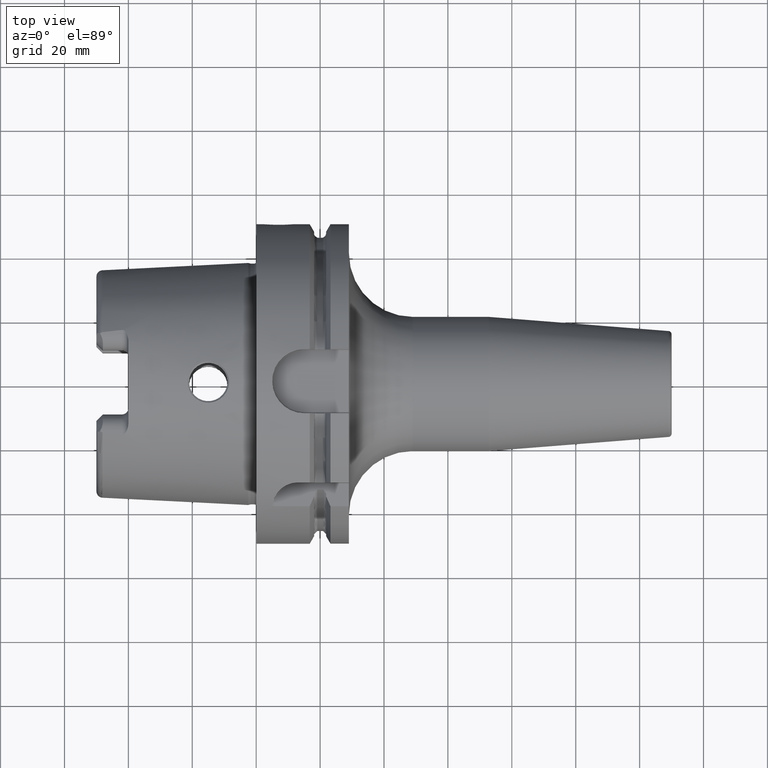
[diagram: clean part render]
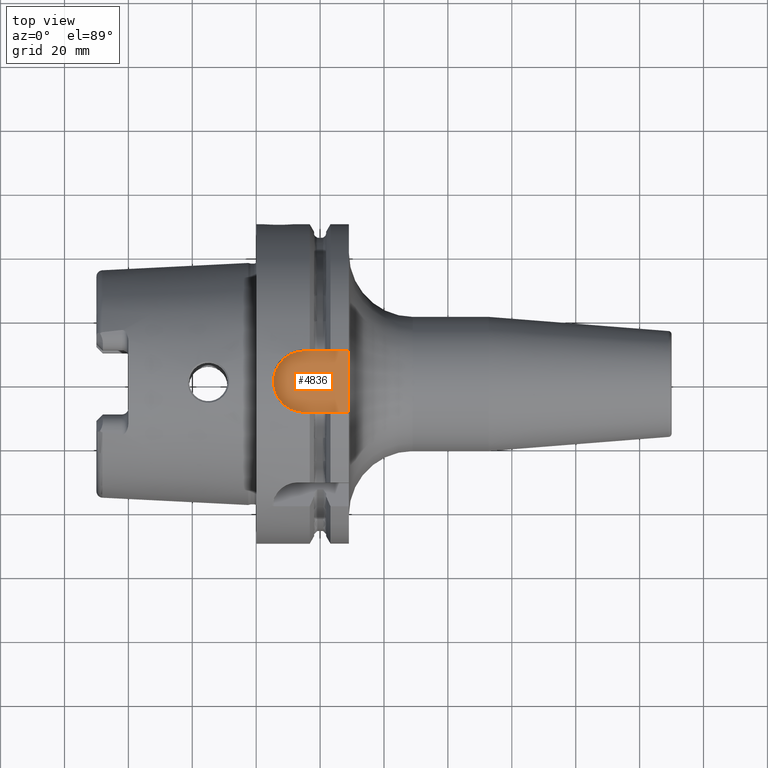
[diagram: same view with one face highlighted and labeled with its STEP entity id]
A machine part, top view. The second image highlights one B-rep face of the part: STEP entity #4836.
In plain terms, the highlighted planar face has unit normal (0, 0, 1).
Its self-contained STEP definition (entity closure, byte-faithful):
#1071=DIRECTION('',(0.E0,1.E0,0.E0));
#1072=VECTOR('',#1071,1.92E1);
#1073=CARTESIAN_POINT('',(2.9E1,-9.6E0,4.4E1));
#1074=LINE('',#1073,#1072);
#1735=DIRECTION('',(1.E0,1.002425647401E-8,-1.002288588783E-8));
#1736=VECTOR('',#1735,1.399999999791E1);
#1737=CARTESIAN_POINT('',(1.500000000209E1,9.599999859660E0,4.400000014032E1));
#1738=LINE('',#1737,#1736);
#1739=DIRECTION('',(-1.E0,1.002479026950E-8,1.002234942832E-8));
#1740=VECTOR('',#1739,1.399999999755E1);
#1741=CARTESIAN_POINT('',(2.9E1,-9.6E0,4.4E1));
#1742=LINE('',#1741,#1740);
#1743=CARTESIAN_POINT('',(1.5E1,-5.506706202141E-14,4.400000003787E1));
#1744=DIRECTION('',(0.E0,0.E0,-1.E0));
#1745=DIRECTION('',(0.E0,-1.E0,0.E0));
#1746=AXIS2_PLACEMENT_3D('',#1743,#1744,#1745);
#2946=CARTESIAN_POINT('',(2.9E1,-9.6E0,4.4E1));
#2948=VERTEX_POINT('',#2946);
#2951=CARTESIAN_POINT('',(2.9E1,9.6E0,4.4E1));
#2953=VERTEX_POINT('',#2951);
#3030=CARTESIAN_POINT('',(1.500000000209E1,9.599999859660E0,4.400000014032E1));
#3031=VERTEX_POINT('',#3030);
#3032=CARTESIAN_POINT('',(1.5E1,-9.599999195885E0,4.400000003787E1));
#3033=VERTEX_POINT('',#3032);
#4823=CARTESIAN_POINT('',(0.E0,0.E0,4.4E1));
#4824=DIRECTION('',(0.E0,0.E0,1.E0));
#4825=DIRECTION('',(1.E0,0.E0,0.E0));
#4826=AXIS2_PLACEMENT_3D('',#4823,#4824,#4825);
#4827=PLANE('',#4826);
#4829=ORIENTED_EDGE('',*,*,#4828,.T.);
#4830=ORIENTED_EDGE('',*,*,#4228,.F.);
#4832=ORIENTED_EDGE('',*,*,#4831,.T.);
#4833=ORIENTED_EDGE('',*,*,#4813,.T.);
#4834=EDGE_LOOP('',(#4829,#4830,#4832,#4833));
#4835=FACE_OUTER_BOUND('',#4834,.F.);
#4836=ADVANCED_FACE('',(#4835),#4827,.T.);
#1747=CIRCLE('',#1746,9.599999195885E0);
#4228=EDGE_CURVE('',#2948,#2953,#1074,.T.);
#4813=EDGE_CURVE('',#3033,#3031,#1747,.T.);
#4828=EDGE_CURVE('',#3031,#2953,#1738,.T.);
#4831=EDGE_CURVE('',#2948,#3033,#1742,.T.);